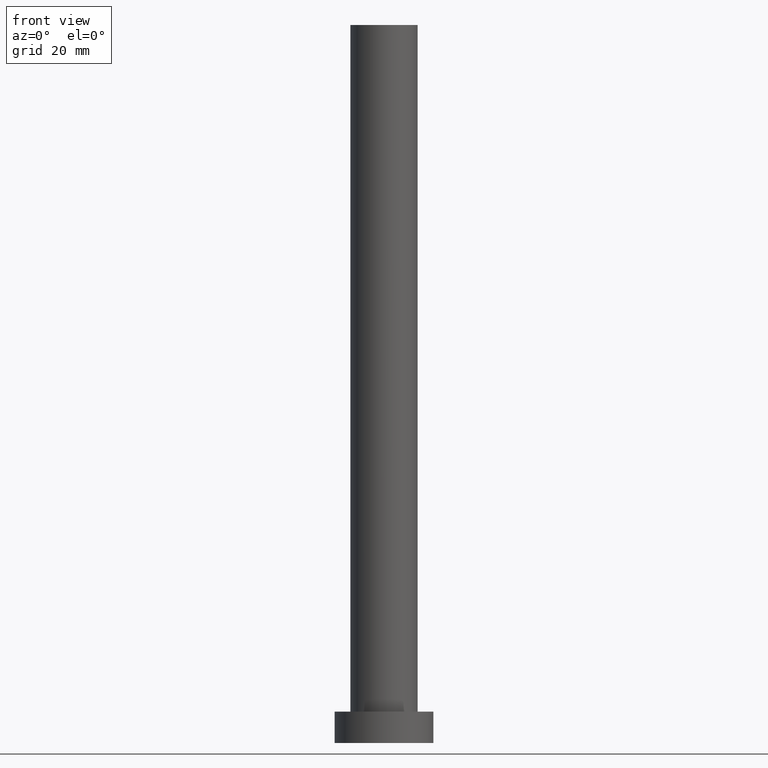
[diagram: clean part render]
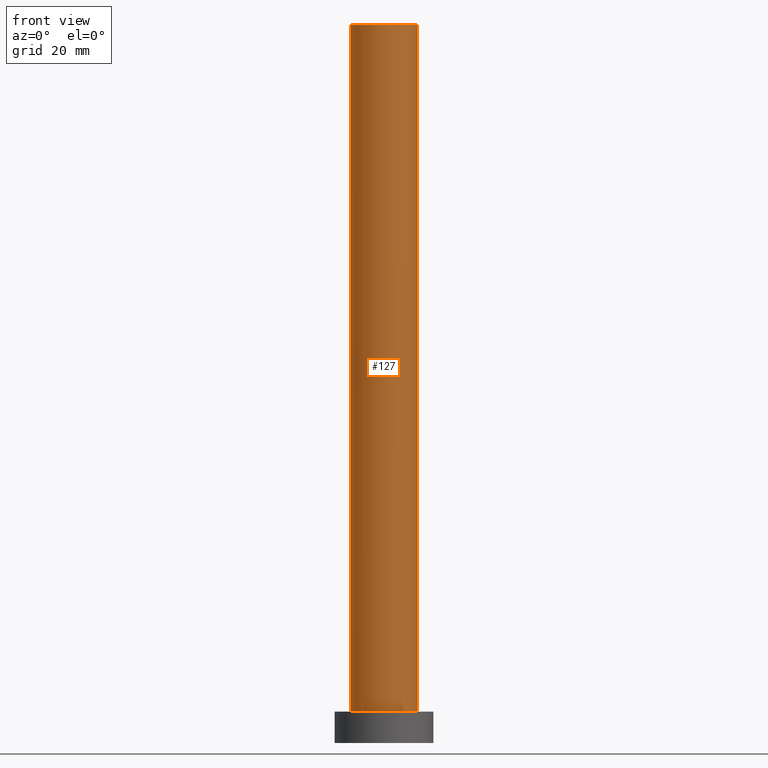
[diagram: same view with one face highlighted and labeled with its STEP entity id]
A machine part, front view. The second image highlights one B-rep face of the part: STEP entity #127.
In plain terms, the highlighted cylindrical surface (edge-blend (fillet) strip) has radius 7.5 mm, axis along (-0, -0, -1).
Its self-contained STEP definition (entity closure, byte-faithful):
#3 = DIRECTION ( 'NONE',  ( 1.000000000000000000, 0.000000000000000000, 0.000000000000000000 ) ) ;
#13 = DIRECTION ( 'NONE',  ( 0.000000000000000000, 0.000000000000000000, 1.000000000000000000 ) ) ;
#19 = CARTESIAN_POINT ( 'NONE',  ( -7.500000000000000000, 0.000000000000000000, 160.0000000000000000 ) ) ;
#23 = FACE_OUTER_BOUND ( 'NONE', #105, .T. ) ;
#25 = EDGE_CURVE ( 'NONE', #78, #76, #120, .T. ) ;
#28 = ORIENTED_EDGE ( 'NONE', *, *, #219, .T. ) ;
#32 = AXIS2_PLACEMENT_3D ( 'NONE', #144, #181, #3 ) ;
#37 = VECTOR ( 'NONE', #85, 1000.000000000000000 ) ;
#44 = CARTESIAN_POINT ( 'NONE',  ( 7.500000000000000000, 9.184850993605147944E-16, 7.000000000000000000 ) ) ;
#48 = CARTESIAN_POINT ( 'NONE',  ( 7.500000000000000000, 9.184850993605147944E-16, 160.0000000000000000 ) ) ;
#59 = VERTEX_POINT ( 'NONE', #44 ) ;
#76 = VERTEX_POINT ( 'NONE', #90 ) ;
#78 = VERTEX_POINT ( 'NONE', #161 ) ;
#85 = DIRECTION ( 'NONE',  ( -0.000000000000000000, -0.000000000000000000, -1.000000000000000000 ) ) ;
#88 = ORIENTED_EDGE ( 'NONE', *, *, #148, .F. ) ;
#90 = CARTESIAN_POINT ( 'NONE',  ( -7.500000000000000000, 0.000000000000000000, 7.000000000000000000 ) ) ;
#93 = CIRCLE ( 'NONE', #32, 7.500000000000000000 ) ;
#95 = CARTESIAN_POINT ( 'NONE',  ( 0.000000000000000000, 0.000000000000000000, 160.0000000000000000 ) ) ;
#101 = CARTESIAN_POINT ( 'NONE',  ( 0.000000000000000000, 0.000000000000000000, 160.0000000000000000 ) ) ;
#105 = EDGE_LOOP ( 'NONE', ( #88, #243, #110, #28 ) ) ;
#110 = ORIENTED_EDGE ( 'NONE', *, *, #25, .T. ) ;
#117 = DIRECTION ( 'NONE',  ( -1.000000000000000000, 0.000000000000000000, 0.000000000000000000 ) ) ;
#120 = LINE ( 'NONE', #19, #211 ) ;
#127 = ADVANCED_FACE ( 'NONE', ( #23 ), #172, .T. ) ;
#143 = AXIS2_PLACEMENT_3D ( 'NONE', #95, #13, #201 ) ;
#144 = CARTESIAN_POINT ( 'NONE',  ( 0.000000000000000000, 0.000000000000000000, 7.000000000000000000 ) ) ;
#147 = AXIS2_PLACEMENT_3D ( 'NONE', #101, #212, #117 ) ;
#148 = EDGE_CURVE ( 'NONE', #186, #59, #160, .T. ) ;
#160 = LINE ( 'NONE', #231, #37 ) ;
#161 = CARTESIAN_POINT ( 'NONE',  ( -7.500000000000000000, 0.000000000000000000, 160.0000000000000000 ) ) ;
#163 = CIRCLE ( 'NONE', #143, 7.500000000000000000 ) ;
#172 = CYLINDRICAL_SURFACE ( 'NONE', #147, 7.500000000000000000 ) ;
#180 = DIRECTION ( 'NONE',  ( -0.000000000000000000, -0.000000000000000000, -1.000000000000000000 ) ) ;
#181 = DIRECTION ( 'NONE',  ( 0.000000000000000000, 0.000000000000000000, 1.000000000000000000 ) ) ;
#186 = VERTEX_POINT ( 'NONE', #48 ) ;
#201 = DIRECTION ( 'NONE',  ( 1.000000000000000000, 0.000000000000000000, 0.000000000000000000 ) ) ;
#211 = VECTOR ( 'NONE', #180, 1000.000000000000000 ) ;
#212 = DIRECTION ( 'NONE',  ( -0.000000000000000000, -0.000000000000000000, -1.000000000000000000 ) ) ;
#219 = EDGE_CURVE ( 'NONE', #76, #59, #93, .T. ) ;
#231 = CARTESIAN_POINT ( 'NONE',  ( 7.500000000000000000, 9.184850993605147944E-16, 160.0000000000000000 ) ) ;
#233 = EDGE_CURVE ( 'NONE', #78, #186, #163, .T. ) ;
#243 = ORIENTED_EDGE ( 'NONE', *, *, #233, .F. ) ;